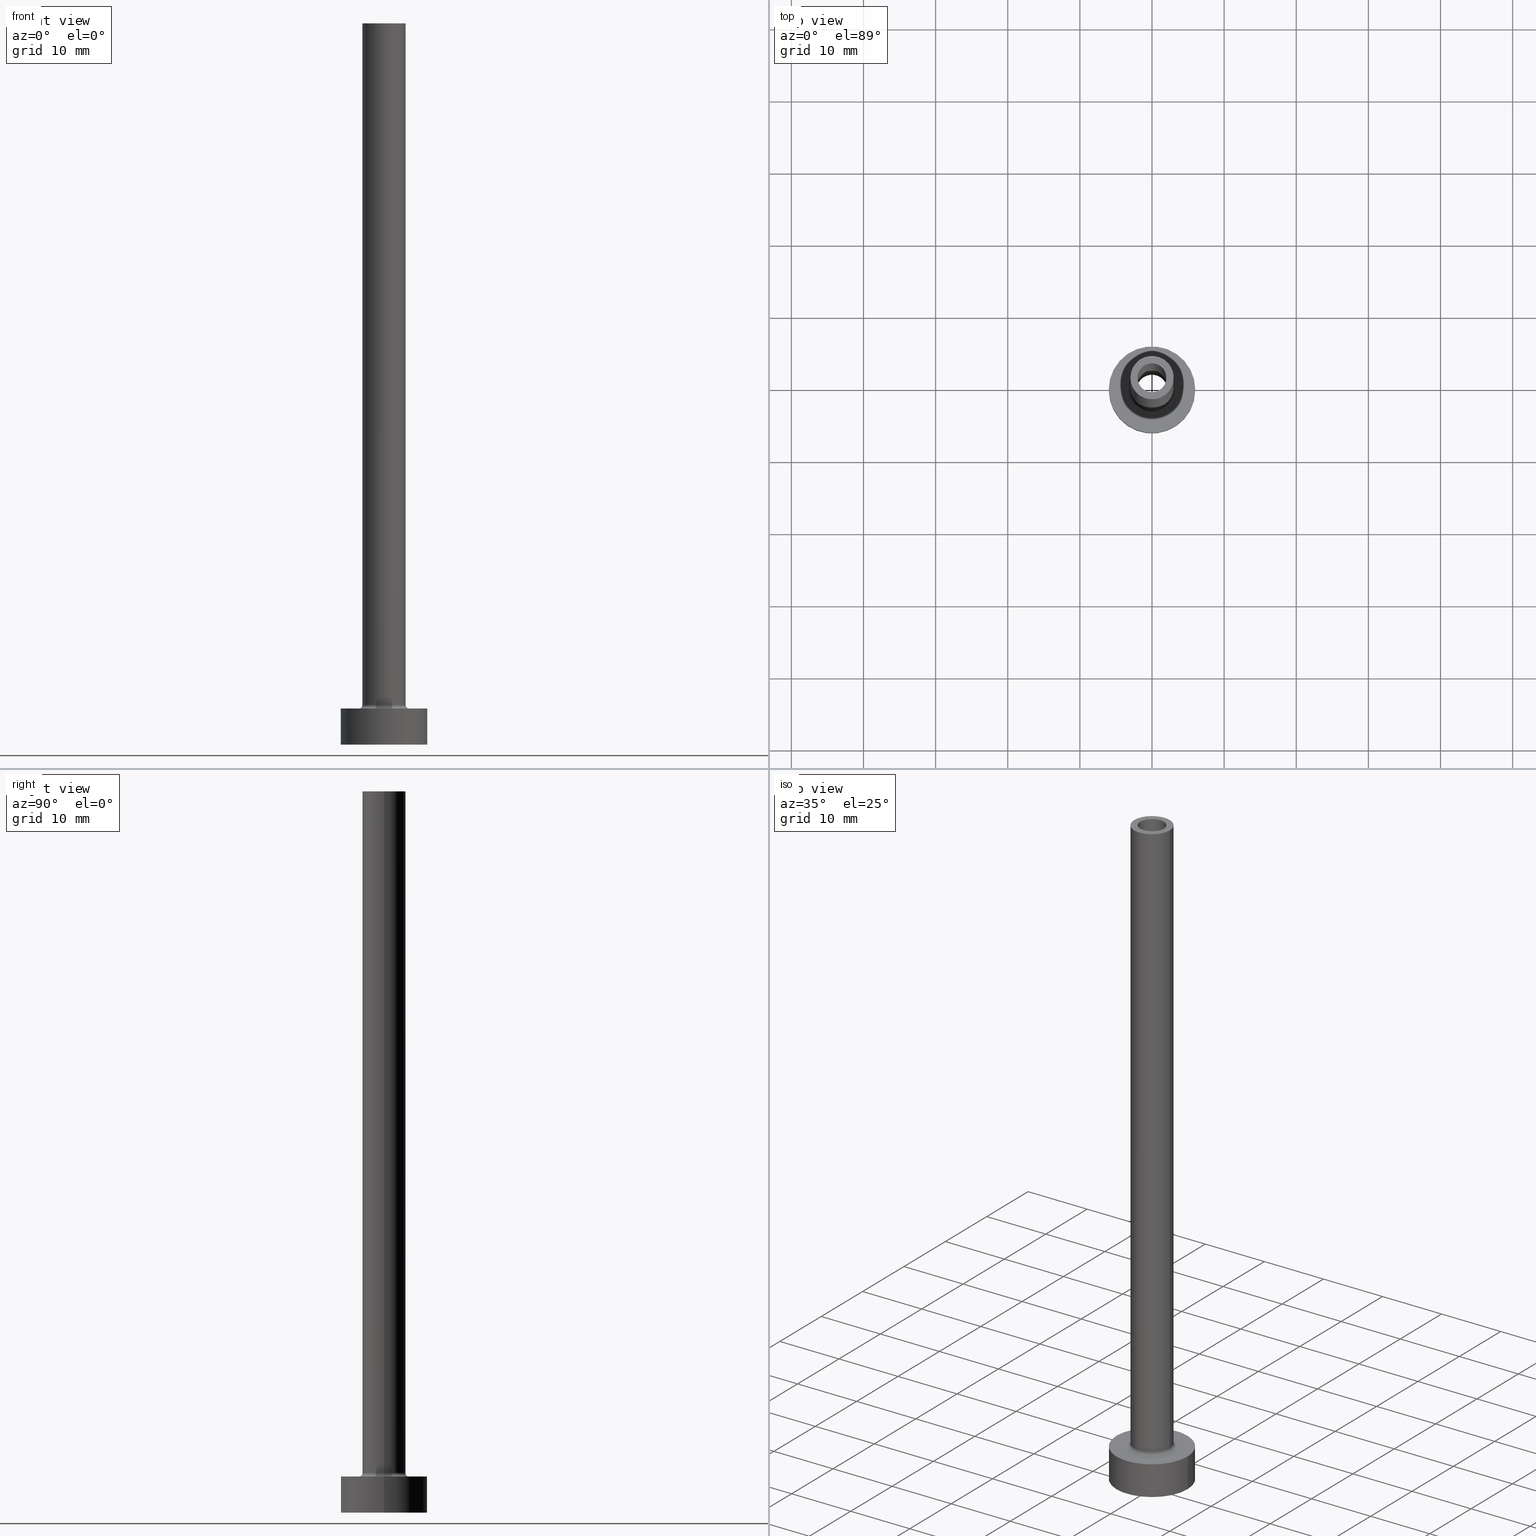
[diagram: canonical four-view strip — front | top / right | iso, engineering-drawing reading convention]
A machine part, canonical four-view strip (front | top / right | iso — engineering-drawing reading convention). The complete STEP part file that produces these views, byte-faithful:
ISO-10303-21;
HEADER;
FILE_DESCRIPTION (( 'STEP AP203' ),
    '1' );
FILE_NAME ('2a4a.STEP',
    '2023-02-13T11:59:52',
    ( '' ),
    ( '' ),
    'SwSTEP 2.0',
    'SolidWorks 2019',
    '' );
FILE_SCHEMA (( 'CONFIG_CONTROL_DESIGN' ));
ENDSEC;

DATA;
#1 = CALENDAR_DATE ( 2023, 13, 2 ) ;
#2 = PLANE ( 'NONE',  #335 ) ;
#3 = ORIENTED_EDGE ( 'NONE', *, *, #408, .F. ) ;
#4 = ORIENTED_EDGE ( 'NONE', *, *, #160, .T. ) ;
#5 = CIRCLE ( 'NONE', #458, 6.000000000000000888 ) ;
#6 = EDGE_CURVE ( 'NONE', #319, #110, #332, .T. ) ;
#7 = CARTESIAN_POINT ( 'NONE',  ( 0.000000000000000000, 0.000000000000000000, 55.00000000000000711 ) ) ;
#8 = LINE ( 'NONE', #241, #210 ) ;
#9 = PLANE ( 'NONE',  #78 ) ;
#10 = EDGE_LOOP ( 'NONE', ( #437, #213, #412, #70 ) ) ;
#11 = ORIENTED_EDGE ( 'NONE', *, *, #262, .T. ) ;
#12 = DATE_AND_TIME ( #49, #50 ) ;
#13 = CARTESIAN_POINT ( 'NONE',  ( 2.149999999999999911, 2.632990618166809235E-16, 55.00000000000000711 ) ) ;
#14 = CARTESIAN_POINT ( 'NONE',  ( 0.000000000000000000, 0.000000000000000000, 100.0000000000000000 ) ) ;
#15 = ADVANCED_FACE ( 'NONE', ( #270, #336 ), #9, .F. ) ;
#16 = DIRECTION ( 'NONE',  ( 1.000000000000000000, 0.000000000000000000, 0.000000000000000000 ) ) ;
#17 = CARTESIAN_POINT ( 'NONE',  ( -3.500000000000000444, 4.286263797015737088E-16, 5.000000000000002665 ) ) ;
#18 = CARTESIAN_POINT ( 'NONE',  ( 0.000000000000000000, 0.000000000000000000, 100.0000000000000000 ) ) ;
#19 = DIRECTION ( 'NONE',  ( 0.000000000000000000, 0.000000000000000000, 1.000000000000000000 ) ) ;
#20 = AXIS2_PLACEMENT_3D ( 'NONE', #150, #82, #346 ) ;
#21 = EDGE_CURVE ( 'NONE', #228, #319, #184, .T. ) ;
#22 = CYLINDRICAL_SURFACE ( 'NONE', #154, 6.000000000000000888 ) ;
#23 =( GEOMETRIC_REPRESENTATION_CONTEXT ( 3 ) GLOBAL_UNCERTAINTY_ASSIGNED_CONTEXT ( ( #52 ) ) GLOBAL_UNIT_ASSIGNED_CONTEXT ( ( #288, #247, #204 ) ) REPRESENTATION_CONTEXT ( 'NONE', 'WORKASPACE' ) );
#24 = PERSON ( 'NEUR�EN�', 'NEUR�EN�', 'NEUR�EN�', ('NEUR�EN�'), ('NEUR�EN�'), ('NEUR�EN�') ) ;
#25 = AXIS2_PLACEMENT_3D ( 'NONE', #285, #386, #128 ) ;
#26 = ADVANCED_FACE ( 'NONE', ( #263 ), #406, .T. ) ;
#27 = CARTESIAN_POINT ( 'NONE',  ( 3.500000000000000444, 0.000000000000000000, 5.000000000000002665 ) ) ;
#28 = DIRECTION ( 'NONE',  ( 0.000000000000000000, 0.000000000000000000, 1.000000000000000000 ) ) ;
#29 = DIRECTION ( 'NONE',  ( 0.000000000000000000, 0.000000000000000000, 1.000000000000000000 ) ) ;
#30 = APPROVAL_DATE_TIME ( #358, #242 ) ;
#31 = VERTEX_POINT ( 'NONE', #60 ) ;
#32 = DIRECTION ( 'NONE',  ( 0.000000000000000000, 0.000000000000000000, 1.000000000000000000 ) ) ;
#33 = EDGE_CURVE ( 'NONE', #360, #375, #194, .T. ) ;
#34 = APPLICATION_PROTOCOL_DEFINITION ( 'international standard', 'config_control_design', 1994, #237 ) ;
#35 = FACE_BOUND ( 'NONE', #255, .T. ) ;
#36 = LINE ( 'NONE', #74, #195 ) ;
#37 = ORIENTED_EDGE ( 'NONE', *, *, #55, .T. ) ;
#38 = DIRECTION ( 'NONE',  ( 1.000000000000000000, 0.000000000000000000, 0.000000000000000000 ) ) ;
#39 = ORIENTED_EDGE ( 'NONE', *, *, #90, .T. ) ;
#40 = AXIS2_PLACEMENT_3D ( 'NONE', #14, #317, #454 ) ;
#41 = EDGE_LOOP ( 'NONE', ( #443, #222 ) ) ;
#42 = DIRECTION ( 'NONE',  ( 0.000000000000000000, 0.000000000000000000, 1.000000000000000000 ) ) ;
#43 = DIRECTION ( 'NONE',  ( 0.000000000000000000, 0.000000000000000000, 1.000000000000000000 ) ) ;
#44 = ORIENTED_EDGE ( 'NONE', *, *, #116, .T. ) ;
#45 = ORIENTED_EDGE ( 'NONE', *, *, #447, .F. ) ;
#46 = EDGE_LOOP ( 'NONE', ( #389, #297, #435, #405 ) ) ;
#47 = COORDINATED_UNIVERSAL_TIME_OFFSET ( 1, 0, .AHEAD. ) ;
#48 = DIRECTION ( 'NONE',  ( -1.000000000000000000, 1.224646799147354440E-16, 0.000000000000000000 ) ) ;
#49 = CALENDAR_DATE ( 2023, 13, 2 ) ;
#50 = LOCAL_TIME ( 12, 59, 52.00000000000000000, #47 ) ;
#51 = FACE_BOUND ( 'NONE', #340, .T. ) ;
#52 = UNCERTAINTY_MEASURE_WITH_UNIT (LENGTH_MEASURE( 1.000000000000000082E-05 ), #288, 'distance_accuracy_value', 'NONE');
#53 = COORDINATED_UNIVERSAL_TIME_OFFSET ( 1, 0, .AHEAD. ) ;
#54 = FACE_OUTER_BOUND ( 'NONE', #46, .T. ) ;
#55 = EDGE_CURVE ( 'NONE', #151, #191, #123, .T. ) ;
#56 = LINE ( 'NONE', #276, #393 ) ;
#57 = COORDINATED_UNIVERSAL_TIME_OFFSET ( 1, 0, .AHEAD. ) ;
#58 = CIRCLE ( 'NONE', #327, 6.000000000000000888 ) ;
#59 = CARTESIAN_POINT ( 'NONE',  ( 0.000000000000000000, 0.000000000000000000, 100.0000000000000000 ) ) ;
#60 = CARTESIAN_POINT ( 'NONE',  ( 3.000000000000000444, 3.673940397442060361E-16, 5.500000000000005329 ) ) ;
#61 = CARTESIAN_POINT ( 'NONE',  ( 6.000000000000000888, 7.347880794884120722E-16, 5.000000000000000000 ) ) ;
#62 = CARTESIAN_POINT ( 'NONE',  ( 2.149999999999999911, 2.632990618166809235E-16, 61.08111831820431092 ) ) ;
#63 = ADVANCED_FACE ( 'NONE', ( #275 ), #226, .F. ) ;
#64 = AXIS2_PLACEMENT_3D ( 'NONE', #127, #284, #162 ) ;
#65 = DATE_AND_TIME ( #98, #423 ) ;
#66 = ORIENTED_EDGE ( 'NONE', *, *, #302, .T. ) ;
#67 = APPROVAL_ROLE ( '' ) ;
#68 = ORIENTED_EDGE ( 'NONE', *, *, #214, .T. ) ;
#69 = CC_DESIGN_PERSON_AND_ORGANIZATION_ASSIGNMENT ( #373, #87, ( #368 ) ) ;
#70 = ORIENTED_EDGE ( 'NONE', *, *, #238, .F. ) ;
#71 = AXIS2_PLACEMENT_3D ( 'NONE', #133, #99, #137 ) ;
#72 = VERTEX_POINT ( 'NONE', #17 ) ;
#73 = DIRECTION ( 'NONE',  ( 1.000000000000000000, 0.000000000000000000, -0.000000000000000000 ) ) ;
#74 = CARTESIAN_POINT ( 'NONE',  ( -3.000000000000000444, 0.000000000000000000, 100.0000000000000000 ) ) ;
#75 = ADVANCED_FACE ( 'NONE', ( #54 ), #157, .F. ) ;
#76 = ORIENTED_EDGE ( 'NONE', *, *, #291, .F. ) ;
#77 = DIRECTION ( 'NONE',  ( 1.000000000000000000, 0.000000000000000000, 0.000000000000000000 ) ) ;
#78 = AXIS2_PLACEMENT_3D ( 'NONE', #7, #369, #260 ) ;
#79 = VERTEX_POINT ( 'NONE', #198 ) ;
#80 = AXIS2_PLACEMENT_3D ( 'NONE', #18, #161, #281 ) ;
#81 = CARTESIAN_POINT ( 'NONE',  ( 3.500000000000000444, 0.000000000000000000, 5.500000000000005329 ) ) ;
#82 = DIRECTION ( 'NONE',  ( -0.000000000000000000, -0.000000000000000000, -1.000000000000000000 ) ) ;
#83 = DIRECTION ( 'NONE',  ( 1.000000000000000000, 0.000000000000000000, 0.000000000000000000 ) ) ;
#84 = ORIENTED_EDGE ( 'NONE', *, *, #160, .F. ) ;
#85 = PERSON_AND_ORGANIZATION ( #24, #378 ) ;
#86 = CYLINDRICAL_SURFACE ( 'NONE', #269, 2.000000000000000000 ) ;
#87 = PERSON_AND_ORGANIZATION_ROLE ( 'design_supplier' ) ;
#88 = SECURITY_CLASSIFICATION ( '', '', #187 ) ;
#89 = DIRECTION ( 'NONE',  ( -0.000000000000000000, -0.000000000000000000, -1.000000000000000000 ) ) ;
#90 = EDGE_CURVE ( 'NONE', #191, #151, #114, .T. ) ;
#91 = CARTESIAN_POINT ( 'NONE',  ( 2.000000000000000000, 2.449293598294705921E-16, 55.00000000000000711 ) ) ;
#92 = DIRECTION ( 'NONE',  ( 0.000000000000000000, 0.000000000000000000, 1.000000000000000000 ) ) ;
#93 = DIRECTION ( 'NONE',  ( 1.000000000000000000, 0.000000000000000000, 0.000000000000000000 ) ) ;
#94 = CARTESIAN_POINT ( 'NONE',  ( -6.000000000000000888, 0.000000000000000000, 0.000000000000000000 ) ) ;
#95 = EDGE_CURVE ( 'NONE', #426, #359, #287, .T. ) ;
#96 = CARTESIAN_POINT ( 'NONE',  ( -6.000000000000000888, 0.000000000000000000, 5.000000000000000000 ) ) ;
#97 = FACE_OUTER_BOUND ( 'NONE', #366, .T. ) ;
#98 = CALENDAR_DATE ( 2023, 13, 2 ) ;
#99 = DIRECTION ( 'NONE',  ( -0.000000000000000000, -0.000000000000000000, -1.000000000000000000 ) ) ;
#100 = CC_DESIGN_APPROVAL ( #149, ( #368 ) ) ;
#101 = ADVANCED_FACE ( 'NONE', ( #51, #203 ), #124, .T. ) ;
#102 = ORIENTED_EDGE ( 'NONE', *, *, #224, .T. ) ;
#103 = DIRECTION ( 'NONE',  ( 1.000000000000000000, 0.000000000000000000, 0.000000000000000000 ) ) ;
#104 = ORIENTED_EDGE ( 'NONE', *, *, #164, .T. ) ;
#105 = EDGE_LOOP ( 'NONE', ( #84, #11, #144, #112 ) ) ;
#106 = CARTESIAN_POINT ( 'NONE',  ( 0.000000000000000000, 0.000000000000000000, 55.00000000000000711 ) ) ;
#107 = AXIS2_PLACEMENT_3D ( 'NONE', #371, #329, #183 ) ;
#108 = DIRECTION ( 'NONE',  ( 0.000000000000000000, 0.000000000000000000, 1.000000000000000000 ) ) ;
#109 = ADVANCED_FACE ( 'NONE', ( #97 ), #176, .T. ) ;
#110 = VERTEX_POINT ( 'NONE', #391 ) ;
#111 = VERTEX_POINT ( 'NONE', #27 ) ;
#112 = ORIENTED_EDGE ( 'NONE', *, *, #33, .F. ) ;
#113 = DATE_AND_TIME ( #278, #258 ) ;
#114 = CIRCLE ( 'NONE', #384, 3.000000000000000444 ) ;
#115 = ORIENTED_EDGE ( 'NONE', *, *, #6, .F. ) ;
#116 = EDGE_CURVE ( 'NONE', #303, #426, #130, .T. ) ;
#117 = CIRCLE ( 'NONE', #107, 3.000000000000000444 ) ;
#118 = DIRECTION ( 'NONE',  ( -0.000000000000000000, -0.000000000000000000, -1.000000000000000000 ) ) ;
#119 = ORIENTED_EDGE ( 'NONE', *, *, #320, .F. ) ;
#120 = DIRECTION ( 'NONE',  ( -0.000000000000000000, -0.000000000000000000, -1.000000000000000000 ) ) ;
#121 = AXIS2_PLACEMENT_3D ( 'NONE', #106, #43, #409 ) ;
#122 = DIRECTION ( 'NONE',  ( -0.000000000000000000, -0.000000000000000000, -1.000000000000000000 ) ) ;
#123 = CIRCLE ( 'NONE', #40, 3.000000000000000444 ) ;
#124 = PLANE ( 'NONE',  #439 ) ;
#125 = DIRECTION ( 'NONE',  ( 1.224646799147353207E-16, 1.000000000000000000, -0.000000000000000000 ) ) ;
#126 = EDGE_CURVE ( 'NONE', #359, #79, #293, .T. ) ;
#127 = CARTESIAN_POINT ( 'NONE',  ( 0.000000000000000000, 0.000000000000000000, 5.500000000000005329 ) ) ;
#128 = DIRECTION ( 'NONE',  ( -1.000000000000000000, 0.000000000000000000, 0.000000000000000000 ) ) ;
#129 = ADVANCED_BREP_SHAPE_REPRESENTATION ( '2a4a', ( #245, #139 ), #23 ) ;
#130 = CIRCLE ( 'NONE', #376, 2.149999999999999911 ) ;
#131 = APPLICATION_CONTEXT ( 'configuration controlled 3d designs of mechanical parts and assemblies' ) ;
#132 = CARTESIAN_POINT ( 'NONE',  ( 0.000000000000000000, 0.000000000000000000, 5.000000000000000000 ) ) ;
#133 = CARTESIAN_POINT ( 'NONE',  ( 0.000000000000000000, 0.000000000000000000, 100.0000000000000000 ) ) ;
#134 = CC_DESIGN_DATE_AND_TIME_ASSIGNMENT ( #65, #212, ( #283 ) ) ;
#135 = CARTESIAN_POINT ( 'NONE',  ( 0.000000000000000000, 0.000000000000000000, 55.00000000000000711 ) ) ;
#136 = CARTESIAN_POINT ( 'NONE',  ( 0.000000000000000000, 0.000000000000000000, 0.000000000000000000 ) ) ;
#137 = DIRECTION ( 'NONE',  ( -1.000000000000000000, 0.000000000000000000, 0.000000000000000000 ) ) ;
#138 = PERSON_AND_ORGANIZATION ( #24, #378 ) ;
#139 = AXIS2_PLACEMENT_3D ( 'NONE', #136, #28, #250 ) ;
#140 = CARTESIAN_POINT ( 'NONE',  ( 0.000000000000000000, 0.000000000000000000, 5.000000000000000000 ) ) ;
#141 = ORIENTED_EDGE ( 'NONE', *, *, #420, .T. ) ;
#142 = CARTESIAN_POINT ( 'NONE',  ( 0.000000000000000000, 0.000000000000000000, 0.000000000000000000 ) ) ;
#143 = CARTESIAN_POINT ( 'NONE',  ( 0.000000000000000000, 0.000000000000000000, 55.00000000000000711 ) ) ;
#144 = ORIENTED_EDGE ( 'NONE', *, *, #256, .T. ) ;
#145 = PRODUCT_RELATED_PRODUCT_CATEGORY ( 'detail', '', ( #158 ) ) ;
#146 = CIRCLE ( 'NONE', #416, 2.149999999999999911 ) ;
#147 = ORIENTED_EDGE ( 'NONE', *, *, #224, .F. ) ;
#148 = AXIS2_PLACEMENT_3D ( 'NONE', #421, #29, #171 ) ;
#149 = APPROVAL ( #398, 'NEUR�EN�' ) ;
#150 = CARTESIAN_POINT ( 'NONE',  ( 0.000000000000000000, 0.000000000000000000, 100.0000000000000000 ) ) ;
#151 = VERTEX_POINT ( 'NONE', #432 ) ;
#152 = ORIENTED_EDGE ( 'NONE', *, *, #126, .T. ) ;
#153 = ORIENTED_EDGE ( 'NONE', *, *, #436, .T. ) ;
#154 = AXIS2_PLACEMENT_3D ( 'NONE', #348, #89, #207 ) ;
#155 = AXIS2_PLACEMENT_3D ( 'NONE', #140, #257, #402 ) ;
#156 = FACE_BOUND ( 'NONE', #272, .T. ) ;
#157 = CYLINDRICAL_SURFACE ( 'NONE', #25, 2.000000000000000000 ) ;
#158 = PRODUCT ( '2a4a', '2a4a', '', ( #173 ) ) ;
#159 = FACE_OUTER_BOUND ( 'NONE', #440, .T. ) ;
#160 = EDGE_CURVE ( 'NONE', #367, #360, #362, .T. ) ;
#161 = DIRECTION ( 'NONE',  ( 0.000000000000000000, 0.000000000000000000, 1.000000000000000000 ) ) ;
#162 = DIRECTION ( 'NONE',  ( 1.000000000000000000, 0.000000000000000000, 0.000000000000000000 ) ) ;
#163 = DIRECTION ( 'NONE',  ( -1.000000000000000000, 0.000000000000000000, 0.000000000000000000 ) ) ;
#164 = EDGE_CURVE ( 'NONE', #426, #303, #146, .T. ) ;
#165 = EDGE_LOOP ( 'NONE', ( #372, #44, #351, #152 ) ) ;
#166 = VECTOR ( 'NONE', #457, 1000.000000000000000 ) ;
#167 = ORIENTED_EDGE ( 'NONE', *, *, #95, .F. ) ;
#168 = EDGE_CURVE ( 'NONE', #151, #170, #36, .T. ) ;
#169 = APPLICATION_PROTOCOL_DEFINITION ( 'international standard', 'config_control_design', 1994, #131 ) ;
#170 = VERTEX_POINT ( 'NONE', #259 ) ;
#171 = DIRECTION ( 'NONE',  ( 1.000000000000000000, 0.000000000000000000, 0.000000000000000000 ) ) ;
#172 = CARTESIAN_POINT ( 'NONE',  ( 0.000000000000000000, 0.000000000000000000, 0.000000000000000000 ) ) ;
#173 = MECHANICAL_CONTEXT ( 'NONE', #131, 'mechanical' ) ;
#174 = VECTOR ( 'NONE', #422, 1000.000000000000000 ) ;
#175 = DIRECTION ( 'NONE',  ( 0.000000000000000000, 0.000000000000000000, -1.000000000000000000 ) ) ;
#176 = CYLINDRICAL_SURFACE ( 'NONE', #343, 6.000000000000000888 ) ;
#177 = COORDINATED_UNIVERSAL_TIME_OFFSET ( 1, 0, .AHEAD. ) ;
#178 = CC_DESIGN_APPROVAL ( #242, ( #283 ) ) ;
#179 = ORIENTED_EDGE ( 'NONE', *, *, #55, .F. ) ;
#180 = CARTESIAN_POINT ( 'NONE',  ( 6.000000000000000888, 7.347880794884120722E-16, 0.000000000000000000 ) ) ;
#181 = CC_DESIGN_DATE_AND_TIME_ASSIGNMENT ( #12, #199, ( #88 ) ) ;
#182 = ORIENTED_EDGE ( 'NONE', *, *, #339, .T. ) ;
#183 = DIRECTION ( 'NONE',  ( 1.000000000000000000, 0.000000000000000000, 0.000000000000000000 ) ) ;
#184 = LINE ( 'NONE', #301, #390 ) ;
#185 = CIRCLE ( 'NONE', #450, 2.000000000000000000 ) ;
#186 = EDGE_LOOP ( 'NONE', ( #400, #102, #153, #286 ) ) ;
#187 = SECURITY_CLASSIFICATION_LEVEL ( 'unclassified' ) ;
#188 = CC_DESIGN_APPROVAL ( #296, ( #88 ) ) ;
#189 = EDGE_CURVE ( 'NONE', #217, #110, #8, .T. ) ;
#190 = FACE_OUTER_BOUND ( 'NONE', #165, .T. ) ;
#191 = VERTEX_POINT ( 'NONE', #197 ) ;
#192 = ORIENTED_EDGE ( 'NONE', *, *, #262, .F. ) ;
#193 = CARTESIAN_POINT ( 'NONE',  ( 0.000000000000000000, 0.000000000000000000, 0.000000000000000000 ) ) ;
#194 = LINE ( 'NONE', #282, #225 ) ;
#195 = VECTOR ( 'NONE', #298, 1000.000000000000000 ) ;
#196 = APPROVAL_PERSON_ORGANIZATION ( #354, #149, #401 ) ;
#197 = CARTESIAN_POINT ( 'NONE',  ( 3.000000000000000444, 3.673940397442060361E-16, 100.0000000000000000 ) ) ;
#198 = CARTESIAN_POINT ( 'NONE',  ( 2.149999999999999911, 2.632990618166809235E-16, 0.000000000000000000 ) ) ;
#199 = DATE_TIME_ROLE ( 'classification_date' ) ;
#200 = CC_DESIGN_PERSON_AND_ORGANIZATION_ASSIGNMENT ( #254, #326, ( #283 ) ) ;
#201 = APPROVAL_DATE_TIME ( #312, #296 ) ;
#202 = FACE_OUTER_BOUND ( 'NONE', #230, .T. ) ;
#203 = FACE_OUTER_BOUND ( 'NONE', #444, .T. ) ;
#204 =( NAMED_UNIT ( * ) SI_UNIT ( $, .STERADIAN. ) SOLID_ANGLE_UNIT ( ) );
#205 = CIRCLE ( 'NONE', #361, 3.500000000000000444 ) ;
#206 = ADVANCED_FACE ( 'NONE', ( #274 ), #22, .T. ) ;
#207 = DIRECTION ( 'NONE',  ( -1.000000000000000000, 0.000000000000000000, 0.000000000000000000 ) ) ;
#208 = CARTESIAN_POINT ( 'NONE',  ( 0.000000000000000000, 0.000000000000000000, 55.00000000000000711 ) ) ;
#209 = EDGE_LOOP ( 'NONE', ( #233, #333 ) ) ;
#210 = VECTOR ( 'NONE', #446, 1000.000000000000000 ) ;
#211 = AXIS2_PLACEMENT_3D ( 'NONE', #438, #430, #365 ) ;
#212 = DATE_TIME_ROLE ( 'creation_date' ) ;
#213 = ORIENTED_EDGE ( 'NONE', *, *, #436, .F. ) ;
#214 = EDGE_CURVE ( 'NONE', #170, #31, #279, .T. ) ;
#215 = COORDINATED_UNIVERSAL_TIME_OFFSET ( 1, 0, .AHEAD. ) ;
#216 = FACE_OUTER_BOUND ( 'NONE', #186, .T. ) ;
#217 = VERTEX_POINT ( 'NONE', #448 ) ;
#218 = VECTOR ( 'NONE', #413, 1000.000000000000000 ) ;
#219 = ADVANCED_FACE ( 'NONE', ( #159 ), #86, .F. ) ;
#220 = CC_DESIGN_SECURITY_CLASSIFICATION ( #88, ( #368 ) ) ;
#221 = AXIS2_PLACEMENT_3D ( 'NONE', #232, #125, #48 ) ;
#222 = ORIENTED_EDGE ( 'NONE', *, *, #256, .F. ) ;
#223 = ORIENTED_EDGE ( 'NONE', *, *, #447, .T. ) ;
#224 = EDGE_CURVE ( 'NONE', #191, #31, #56, .T. ) ;
#225 = VECTOR ( 'NONE', #120, 1000.000000000000000 ) ;
#226 = TOROIDAL_SURFACE ( 'NONE', #235, 3.500000000000000444, 0.5000000000000000000 ) ;
#227 = CARTESIAN_POINT ( 'NONE',  ( 0.000000000000000000, 0.000000000000000000, 5.000000000000000000 ) ) ;
#228 = VERTEX_POINT ( 'NONE', #316 ) ;
#229 = CIRCLE ( 'NONE', #328, 0.5000000000000004441 ) ;
#230 = EDGE_LOOP ( 'NONE', ( #37, #39 ) ) ;
#231 = ORIENTED_EDGE ( 'NONE', *, *, #21, .F. ) ;
#232 = CARTESIAN_POINT ( 'NONE',  ( -3.500000000000000444, 4.286263797015737088E-16, 5.500000000000005329 ) ) ;
#233 = ORIENTED_EDGE ( 'NONE', *, *, #164, .F. ) ;
#234 = ORIENTED_EDGE ( 'NONE', *, *, #168, .T. ) ;
#235 = AXIS2_PLACEMENT_3D ( 'NONE', #318, #456, #244 ) ;
#236 = FACE_OUTER_BOUND ( 'NONE', #266, .T. ) ;
#237 = APPLICATION_CONTEXT ( 'configuration controlled 3d designs of mechanical parts and assemblies' ) ;
#238 = EDGE_CURVE ( 'NONE', #72, #111, #205, .T. ) ;
#239 = APPROVAL_PERSON_ORGANIZATION ( #138, #242, #67 ) ;
#240 = DIRECTION ( 'NONE',  ( 0.000000000000000000, 0.000000000000000000, -1.000000000000000000 ) ) ;
#241 = CARTESIAN_POINT ( 'NONE',  ( -2.000000000000000000, 0.000000000000000000, 100.0000000000000000 ) ) ;
#242 = APPROVAL ( #429, 'NEUR�EN�' ) ;
#243 = LINE ( 'NONE', #344, #218 ) ;
#244 = DIRECTION ( 'NONE',  ( 1.000000000000000000, 0.000000000000000000, 0.000000000000000000 ) ) ;
#245 = MANIFOLD_SOLID_BREP ( 'Odebrat vysunut�m4', #415 ) ;
#246 = LOCAL_TIME ( 12, 59, 52.00000000000000000, #57 ) ;
#247 =( NAMED_UNIT ( * ) PLANE_ANGLE_UNIT ( ) SI_UNIT ( $, .RADIAN. ) );
#248 = FACE_OUTER_BOUND ( 'NONE', #410, .T. ) ;
#249 = EDGE_CURVE ( 'NONE', #228, #217, #185, .T. ) ;
#250 = DIRECTION ( 'NONE',  ( 1.000000000000000000, 0.000000000000000000, 0.000000000000000000 ) ) ;
#251 = TOROIDAL_SURFACE ( 'NONE', #148, 3.500000000000000444, 0.5000000000000000000 ) ;
#252 = PERSON_AND_ORGANIZATION ( #24, #378 ) ;
#253 = ORIENTED_EDGE ( 'NONE', *, *, #33, .T. ) ;
#254 = PERSON_AND_ORGANIZATION ( #24, #378 ) ;
#255 = EDGE_LOOP ( 'NONE', ( #305, #76 ) ) ;
#256 = EDGE_CURVE ( 'NONE', #397, #375, #58, .T. ) ;
#257 = DIRECTION ( 'NONE',  ( -0.000000000000000000, -0.000000000000000000, -1.000000000000000000 ) ) ;
#258 = LOCAL_TIME ( 12, 59, 52.00000000000000000, #53 ) ;
#259 = CARTESIAN_POINT ( 'NONE',  ( -3.000000000000000444, 0.000000000000000000, 5.500000000000005329 ) ) ;
#260 = DIRECTION ( 'NONE',  ( 1.000000000000000000, 0.000000000000000000, -0.000000000000000000 ) ) ;
#261 = DIRECTION ( 'NONE',  ( 0.000000000000000000, -1.000000000000000000, 0.000000000000000000 ) ) ;
#262 = EDGE_CURVE ( 'NONE', #367, #397, #243, .T. ) ;
#263 = FACE_OUTER_BOUND ( 'NONE', #308, .T. ) ;
#264 = DIRECTION ( 'NONE',  ( 0.000000000000000000, 0.000000000000000000, 1.000000000000000000 ) ) ;
#265 = DIRECTION ( 'NONE',  ( 0.000000000000000000, 0.000000000000000000, 1.000000000000000000 ) ) ;
#266 = EDGE_LOOP ( 'NONE', ( #104, #182, #311, #167 ) ) ;
#267 = APPROVAL_STATUS ( 'not_yet_approved' ) ;
#268 = CARTESIAN_POINT ( 'NONE',  ( -2.149999999999999911, 0.000000000000000000, 55.00000000000000711 ) ) ;
#269 = AXIS2_PLACEMENT_3D ( 'NONE', #59, #383, #163 ) ;
#270 = FACE_BOUND ( 'NONE', #407, .T. ) ;
#271 = PERSON_AND_ORGANIZATION_ROLE ( 'classification_officer' ) ;
#272 = EDGE_LOOP ( 'NONE', ( #119, #424 ) ) ;
#273 = ADVANCED_FACE ( 'NONE', ( #236 ), #385, .F. ) ;
#274 = FACE_OUTER_BOUND ( 'NONE', #105, .T. ) ;
#275 = FACE_OUTER_BOUND ( 'NONE', #10, .T. ) ;
#276 = CARTESIAN_POINT ( 'NONE',  ( 3.000000000000000444, 3.673940397442060361E-16, 100.0000000000000000 ) ) ;
#277 = CARTESIAN_POINT ( 'NONE',  ( 0.000000000000000000, 0.000000000000000000, 5.000000000000000000 ) ) ;
#278 = CALENDAR_DATE ( 2023, 13, 2 ) ;
#279 = CIRCLE ( 'NONE', #64, 3.000000000000000444 ) ;
#280 = LOCAL_TIME ( 12, 59, 52.00000000000000000, #215 ) ;
#281 = DIRECTION ( 'NONE',  ( 1.000000000000000000, 0.000000000000000000, -0.000000000000000000 ) ) ;
#282 = CARTESIAN_POINT ( 'NONE',  ( -6.000000000000000888, 0.000000000000000000, 5.000000000000000000 ) ) ;
#283 = PRODUCT_DEFINITION ( 'NEZN�M�', '', #368, #314 ) ;
#284 = DIRECTION ( 'NONE',  ( 0.000000000000000000, 0.000000000000000000, 1.000000000000000000 ) ) ;
#285 = CARTESIAN_POINT ( 'NONE',  ( 0.000000000000000000, 0.000000000000000000, 100.0000000000000000 ) ) ;
#286 = ORIENTED_EDGE ( 'NONE', *, *, #168, .F. ) ;
#287 = LINE ( 'NONE', #379, #174 ) ;
#288 =( LENGTH_UNIT ( ) NAMED_UNIT ( * ) SI_UNIT ( .MILLI., .METRE. ) );
#289 = CIRCLE ( 'NONE', #221, 0.4999999999999995559 ) ;
#290 = CARTESIAN_POINT ( 'NONE',  ( -2.149999999999999911, 0.000000000000000000, 0.000000000000000000 ) ) ;
#291 = EDGE_CURVE ( 'NONE', #79, #359, #306, .T. ) ;
#292 = DIRECTION ( 'NONE',  ( 0.000000000000000000, 0.000000000000000000, 1.000000000000000000 ) ) ;
#293 = CIRCLE ( 'NONE', #352, 2.149999999999999911 ) ;
#294 = AXIS2_PLACEMENT_3D ( 'NONE', #417, #240, #381 ) ;
#295 = CARTESIAN_POINT ( 'NONE',  ( 0.000000000000000000, 0.000000000000000000, 0.000000000000000000 ) ) ;
#296 = APPROVAL ( #267, 'NEUR�EN�' ) ;
#297 = ORIENTED_EDGE ( 'NONE', *, *, #21, .T. ) ;
#298 = DIRECTION ( 'NONE',  ( -0.000000000000000000, -0.000000000000000000, -1.000000000000000000 ) ) ;
#299 = ORIENTED_EDGE ( 'NONE', *, *, #238, .T. ) ;
#300 = DIRECTION ( 'NONE',  ( 1.000000000000000000, 0.000000000000000000, 0.000000000000000000 ) ) ;
#301 = CARTESIAN_POINT ( 'NONE',  ( 2.000000000000000000, 2.449293598294705921E-16, 100.0000000000000000 ) ) ;
#302 = EDGE_CURVE ( 'NONE', #170, #72, #289, .T. ) ;
#303 = VERTEX_POINT ( 'NONE', #13 ) ;
#304 = DIRECTION ( 'NONE',  ( 1.000000000000000000, 0.000000000000000000, 0.000000000000000000 ) ) ;
#305 = ORIENTED_EDGE ( 'NONE', *, *, #126, .F. ) ;
#306 = CIRCLE ( 'NONE', #349, 2.149999999999999911 ) ;
#307 = ORIENTED_EDGE ( 'NONE', *, *, #249, .T. ) ;
#308 = EDGE_LOOP ( 'NONE', ( #147, #179, #234, #68 ) ) ;
#309 = APPROVAL_DATE_TIME ( #113, #149 ) ;
#310 = PLANE ( 'NONE',  #80 ) ;
#311 = ORIENTED_EDGE ( 'NONE', *, *, #291, .T. ) ;
#312 = DATE_AND_TIME ( #382, #246 ) ;
#313 = ADVANCED_FACE ( 'NONE', ( #156, #202 ), #310, .T. ) ;
#314 = DESIGN_CONTEXT ( 'detailed design', #237, 'design' ) ;
#315 = AXIS2_PLACEMENT_3D ( 'NONE', #295, #264, #77 ) ;
#316 = CARTESIAN_POINT ( 'NONE',  ( 2.000000000000000000, 2.449293598294705921E-16, 100.0000000000000000 ) ) ;
#317 = DIRECTION ( 'NONE',  ( 0.000000000000000000, 0.000000000000000000, 1.000000000000000000 ) ) ;
#318 = CARTESIAN_POINT ( 'NONE',  ( 0.000000000000000000, 0.000000000000000000, 5.500000000000005329 ) ) ;
#319 = VERTEX_POINT ( 'NONE', #91 ) ;
#320 = EDGE_CURVE ( 'NONE', #217, #228, #345, .T. ) ;
#321 = APPROVAL_PERSON_ORGANIZATION ( #337, #296, #445 ) ;
#322 = ORIENTED_EDGE ( 'NONE', *, *, #420, .F. ) ;
#323 = ORIENTED_EDGE ( 'NONE', *, *, #356, .T. ) ;
#324 = ADVANCED_FACE ( 'NONE', ( #248 ), #251, .F. ) ;
#325 = DIRECTION ( 'NONE',  ( -0.000000000000000000, -0.000000000000000000, -1.000000000000000000 ) ) ;
#326 = PERSON_AND_ORGANIZATION_ROLE ( 'creator' ) ;
#327 = AXIS2_PLACEMENT_3D ( 'NONE', #193, #92, #16 ) ;
#328 = AXIS2_PLACEMENT_3D ( 'NONE', #81, #261, #175 ) ;
#329 = DIRECTION ( 'NONE',  ( 0.000000000000000000, 0.000000000000000000, 1.000000000000000000 ) ) ;
#330 = FACE_OUTER_BOUND ( 'NONE', #41, .T. ) ;
#331 = ORIENTED_EDGE ( 'NONE', *, *, #392, .T. ) ;
#332 = CIRCLE ( 'NONE', #121, 2.000000000000000000 ) ;
#333 = ORIENTED_EDGE ( 'NONE', *, *, #116, .F. ) ;
#334 = CYLINDRICAL_SURFACE ( 'NONE', #211, 2.149999999999999911 ) ;
#335 = AXIS2_PLACEMENT_3D ( 'NONE', #142, #108, #73 ) ;
#336 = FACE_OUTER_BOUND ( 'NONE', #209, .T. ) ;
#337 = PERSON_AND_ORGANIZATION ( #24, #378 ) ;
#338 = DIRECTION ( 'NONE',  ( 1.000000000000000000, 0.000000000000000000, 0.000000000000000000 ) ) ;
#339 = EDGE_CURVE ( 'NONE', #303, #79, #399, .T. ) ;
#340 = EDGE_LOOP ( 'NONE', ( #223, #299 ) ) ;
#341 = PERSON_AND_ORGANIZATION_ROLE ( 'creator' ) ;
#342 = PRODUCT_DEFINITION_SHAPE ( 'NONE', 'NONE',  #283 ) ;
#343 = AXIS2_PLACEMENT_3D ( 'NONE', #132, #388, #460 ) ;
#344 = CARTESIAN_POINT ( 'NONE',  ( 6.000000000000000888, 7.347880794884120722E-16, 5.000000000000000000 ) ) ;
#345 = CIRCLE ( 'NONE', #428, 2.000000000000000000 ) ;
#346 = DIRECTION ( 'NONE',  ( -1.000000000000000000, 0.000000000000000000, 0.000000000000000000 ) ) ;
#347 = DIRECTION ( 'NONE',  ( 1.000000000000000000, 0.000000000000000000, 0.000000000000000000 ) ) ;
#348 = CARTESIAN_POINT ( 'NONE',  ( 0.000000000000000000, 0.000000000000000000, 5.000000000000000000 ) ) ;
#349 = AXIS2_PLACEMENT_3D ( 'NONE', #442, #118, #83 ) ;
#350 = CC_DESIGN_PERSON_AND_ORGANIZATION_ASSIGNMENT ( #252, #396, ( #158 ) ) ;
#351 = ORIENTED_EDGE ( 'NONE', *, *, #95, .T. ) ;
#352 = AXIS2_PLACEMENT_3D ( 'NONE', #172, #325, #304 ) ;
#353 = DIRECTION ( 'NONE',  ( 0.000000000000000000, 0.000000000000000000, 1.000000000000000000 ) ) ;
#354 = PERSON_AND_ORGANIZATION ( #24, #378 ) ;
#355 = ORIENTED_EDGE ( 'NONE', *, *, #214, .F. ) ;
#356 = EDGE_CURVE ( 'NONE', #110, #319, #441, .T. ) ;
#357 = DIRECTION ( 'NONE',  ( 1.000000000000000000, 0.000000000000000000, 0.000000000000000000 ) ) ;
#358 = DATE_AND_TIME ( #1, #280 ) ;
#359 = VERTEX_POINT ( 'NONE', #290 ) ;
#360 = VERTEX_POINT ( 'NONE', #96 ) ;
#361 = AXIS2_PLACEMENT_3D ( 'NONE', #377, #451, #347 ) ;
#362 = CIRCLE ( 'NONE', #427, 6.000000000000000888 ) ;
#363 = CIRCLE ( 'NONE', #315, 6.000000000000000888 ) ;
#364 = CARTESIAN_POINT ( 'NONE',  ( 0.000000000000000000, 0.000000000000000000, 5.000000000000000000 ) ) ;
#365 = DIRECTION ( 'NONE',  ( -1.000000000000000000, 0.000000000000000000, 0.000000000000000000 ) ) ;
#366 = EDGE_LOOP ( 'NONE', ( #192, #322, #253, #331 ) ) ;
#367 = VERTEX_POINT ( 'NONE', #61 ) ;
#368 = PRODUCT_DEFINITION_FORMATION_WITH_SPECIFIED_SOURCE ( 'LIBOVOLN�', '', #158, .NOT_KNOWN. ) ;
#369 = DIRECTION ( 'NONE',  ( 0.000000000000000000, 0.000000000000000000, 1.000000000000000000 ) ) ;
#370 = CC_DESIGN_PERSON_AND_ORGANIZATION_ASSIGNMENT ( #85, #271, ( #88 ) ) ;
#371 = CARTESIAN_POINT ( 'NONE',  ( 0.000000000000000000, 0.000000000000000000, 5.500000000000005329 ) ) ;
#372 = ORIENTED_EDGE ( 'NONE', *, *, #339, .F. ) ;
#373 = PERSON_AND_ORGANIZATION ( #24, #378 ) ;
#374 = CARTESIAN_POINT ( 'NONE',  ( 0.000000000000000000, 0.000000000000000000, 100.0000000000000000 ) ) ;
#375 = VERTEX_POINT ( 'NONE', #94 ) ;
#376 = AXIS2_PLACEMENT_3D ( 'NONE', #135, #292, #357 ) ;
#377 = CARTESIAN_POINT ( 'NONE',  ( 0.000000000000000000, 0.000000000000000000, 5.000000000000000000 ) ) ;
#378 = ORGANIZATION ( 'NEUR�EN�', 'NEUR�EN�', '' ) ;
#379 = CARTESIAN_POINT ( 'NONE',  ( -2.149999999999999911, 0.000000000000000000, 61.08111831820431092 ) ) ;
#380 = SHAPE_DEFINITION_REPRESENTATION ( #342, #129 ) ;
#381 = DIRECTION ( 'NONE',  ( -1.000000000000000000, 0.000000000000000000, 0.000000000000000000 ) ) ;
#382 = CALENDAR_DATE ( 2023, 13, 2 ) ;
#383 = DIRECTION ( 'NONE',  ( 0.000000000000000000, 0.000000000000000000, -1.000000000000000000 ) ) ;
#384 = AXIS2_PLACEMENT_3D ( 'NONE', #419, #449, #93 ) ;
#385 = CYLINDRICAL_SURFACE ( 'NONE', #294, 2.149999999999999911 ) ;
#386 = DIRECTION ( 'NONE',  ( 0.000000000000000000, 0.000000000000000000, -1.000000000000000000 ) ) ;
#387 = ADVANCED_FACE ( 'NONE', ( #216 ), #459, .T. ) ;
#388 = DIRECTION ( 'NONE',  ( -0.000000000000000000, -0.000000000000000000, -1.000000000000000000 ) ) ;
#389 = ORIENTED_EDGE ( 'NONE', *, *, #320, .T. ) ;
#390 = VECTOR ( 'NONE', #434, 1000.000000000000000 ) ;
#391 = CARTESIAN_POINT ( 'NONE',  ( -2.000000000000000000, 0.000000000000000000, 55.00000000000000711 ) ) ;
#392 = EDGE_CURVE ( 'NONE', #375, #397, #363, .T. ) ;
#393 = VECTOR ( 'NONE', #122, 1000.000000000000000 ) ;
#394 = AXIS2_PLACEMENT_3D ( 'NONE', #208, #353, #103 ) ;
#395 = DIRECTION ( 'NONE',  ( 1.000000000000000000, 0.000000000000000000, 0.000000000000000000 ) ) ;
#396 = PERSON_AND_ORGANIZATION_ROLE ( 'design_owner' ) ;
#397 = VERTEX_POINT ( 'NONE', #180 ) ;
#398 = APPROVAL_STATUS ( 'not_yet_approved' ) ;
#399 = LINE ( 'NONE', #62, #166 ) ;
#400 = ORIENTED_EDGE ( 'NONE', *, *, #90, .F. ) ;
#401 = APPROVAL_ROLE ( '' ) ;
#402 = DIRECTION ( 'NONE',  ( 1.000000000000000000, 0.000000000000000000, 0.000000000000000000 ) ) ;
#403 = ADVANCED_FACE ( 'NONE', ( #190 ), #334, .F. ) ;
#404 = DIRECTION ( 'NONE',  ( 0.000000000000000000, 0.000000000000000000, 1.000000000000000000 ) ) ;
#405 = ORIENTED_EDGE ( 'NONE', *, *, #189, .F. ) ;
#406 = CYLINDRICAL_SURFACE ( 'NONE', #20, 3.000000000000000444 ) ;
#407 = EDGE_LOOP ( 'NONE', ( #323, #431 ) ) ;
#408 = EDGE_CURVE ( 'NONE', #31, #111, #229, .T. ) ;
#409 = DIRECTION ( 'NONE',  ( 1.000000000000000000, 0.000000000000000000, 0.000000000000000000 ) ) ;
#410 = EDGE_LOOP ( 'NONE', ( #355, #66, #45, #3 ) ) ;
#411 = DIRECTION ( 'NONE',  ( 0.000000000000000000, 0.000000000000000000, 1.000000000000000000 ) ) ;
#412 = ORIENTED_EDGE ( 'NONE', *, *, #408, .T. ) ;
#413 = DIRECTION ( 'NONE',  ( -0.000000000000000000, -0.000000000000000000, -1.000000000000000000 ) ) ;
#414 = PERSON_AND_ORGANIZATION ( #24, #378 ) ;
#415 = CLOSED_SHELL ( 'NONE', ( #75, #273, #324, #387, #206, #109, #101, #455, #26, #313, #63, #403, #15, #219 ) ) ;
#416 = AXIS2_PLACEMENT_3D ( 'NONE', #143, #404, #338 ) ;
#417 = CARTESIAN_POINT ( 'NONE',  ( 0.000000000000000000, 0.000000000000000000, 61.08111831820431092 ) ) ;
#418 = CIRCLE ( 'NONE', #155, 3.500000000000000444 ) ;
#419 = CARTESIAN_POINT ( 'NONE',  ( 0.000000000000000000, 0.000000000000000000, 100.0000000000000000 ) ) ;
#420 = EDGE_CURVE ( 'NONE', #360, #367, #5, .T. ) ;
#421 = CARTESIAN_POINT ( 'NONE',  ( 0.000000000000000000, 0.000000000000000000, 5.500000000000005329 ) ) ;
#422 = DIRECTION ( 'NONE',  ( 0.000000000000000000, 0.000000000000000000, -1.000000000000000000 ) ) ;
#423 = LOCAL_TIME ( 12, 59, 52.00000000000000000, #177 ) ;
#424 = ORIENTED_EDGE ( 'NONE', *, *, #249, .F. ) ;
#425 = CARTESIAN_POINT ( 'NONE',  ( 0.000000000000000000, 0.000000000000000000, 100.0000000000000000 ) ) ;
#426 = VERTEX_POINT ( 'NONE', #268 ) ;
#427 = AXIS2_PLACEMENT_3D ( 'NONE', #364, #265, #300 ) ;
#428 = AXIS2_PLACEMENT_3D ( 'NONE', #425, #32, #395 ) ;
#429 = APPROVAL_STATUS ( 'not_yet_approved' ) ;
#430 = DIRECTION ( 'NONE',  ( 0.000000000000000000, 0.000000000000000000, -1.000000000000000000 ) ) ;
#431 = ORIENTED_EDGE ( 'NONE', *, *, #6, .T. ) ;
#432 = CARTESIAN_POINT ( 'NONE',  ( -3.000000000000000444, 0.000000000000000000, 100.0000000000000000 ) ) ;
#433 = ORIENTED_EDGE ( 'NONE', *, *, #189, .T. ) ;
#434 = DIRECTION ( 'NONE',  ( 0.000000000000000000, 0.000000000000000000, -1.000000000000000000 ) ) ;
#435 = ORIENTED_EDGE ( 'NONE', *, *, #356, .F. ) ;
#436 = EDGE_CURVE ( 'NONE', #31, #170, #117, .T. ) ;
#437 = ORIENTED_EDGE ( 'NONE', *, *, #302, .F. ) ;
#438 = CARTESIAN_POINT ( 'NONE',  ( 0.000000000000000000, 0.000000000000000000, 61.08111831820431092 ) ) ;
#439 = AXIS2_PLACEMENT_3D ( 'NONE', #277, #19, #452 ) ;
#440 = EDGE_LOOP ( 'NONE', ( #231, #307, #433, #115 ) ) ;
#441 = CIRCLE ( 'NONE', #394, 2.000000000000000000 ) ;
#442 = CARTESIAN_POINT ( 'NONE',  ( 0.000000000000000000, 0.000000000000000000, 0.000000000000000000 ) ) ;
#443 = ORIENTED_EDGE ( 'NONE', *, *, #392, .F. ) ;
#444 = EDGE_LOOP ( 'NONE', ( #141, #4 ) ) ;
#445 = APPROVAL_ROLE ( '' ) ;
#446 = DIRECTION ( 'NONE',  ( 0.000000000000000000, 0.000000000000000000, -1.000000000000000000 ) ) ;
#447 = EDGE_CURVE ( 'NONE', #111, #72, #418, .T. ) ;
#448 = CARTESIAN_POINT ( 'NONE',  ( -2.000000000000000000, 0.000000000000000000, 100.0000000000000000 ) ) ;
#449 = DIRECTION ( 'NONE',  ( 0.000000000000000000, 0.000000000000000000, 1.000000000000000000 ) ) ;
#450 = AXIS2_PLACEMENT_3D ( 'NONE', #374, #411, #453 ) ;
#451 = DIRECTION ( 'NONE',  ( -0.000000000000000000, -0.000000000000000000, -1.000000000000000000 ) ) ;
#452 = DIRECTION ( 'NONE',  ( 1.000000000000000000, 0.000000000000000000, -0.000000000000000000 ) ) ;
#453 = DIRECTION ( 'NONE',  ( 1.000000000000000000, 0.000000000000000000, 0.000000000000000000 ) ) ;
#454 = DIRECTION ( 'NONE',  ( 1.000000000000000000, 0.000000000000000000, 0.000000000000000000 ) ) ;
#455 = ADVANCED_FACE ( 'NONE', ( #35, #330 ), #2, .F. ) ;
#456 = DIRECTION ( 'NONE',  ( 0.000000000000000000, 0.000000000000000000, 1.000000000000000000 ) ) ;
#457 = DIRECTION ( 'NONE',  ( 0.000000000000000000, 0.000000000000000000, -1.000000000000000000 ) ) ;
#458 = AXIS2_PLACEMENT_3D ( 'NONE', #227, #42, #38 ) ;
#459 = CYLINDRICAL_SURFACE ( 'NONE', #71, 3.000000000000000444 ) ;
#460 = DIRECTION ( 'NONE',  ( -1.000000000000000000, 0.000000000000000000, 0.000000000000000000 ) ) ;
#461 = CC_DESIGN_PERSON_AND_ORGANIZATION_ASSIGNMENT ( #414, #341, ( #368 ) ) ;
ENDSEC;
END-ISO-10303-21;
